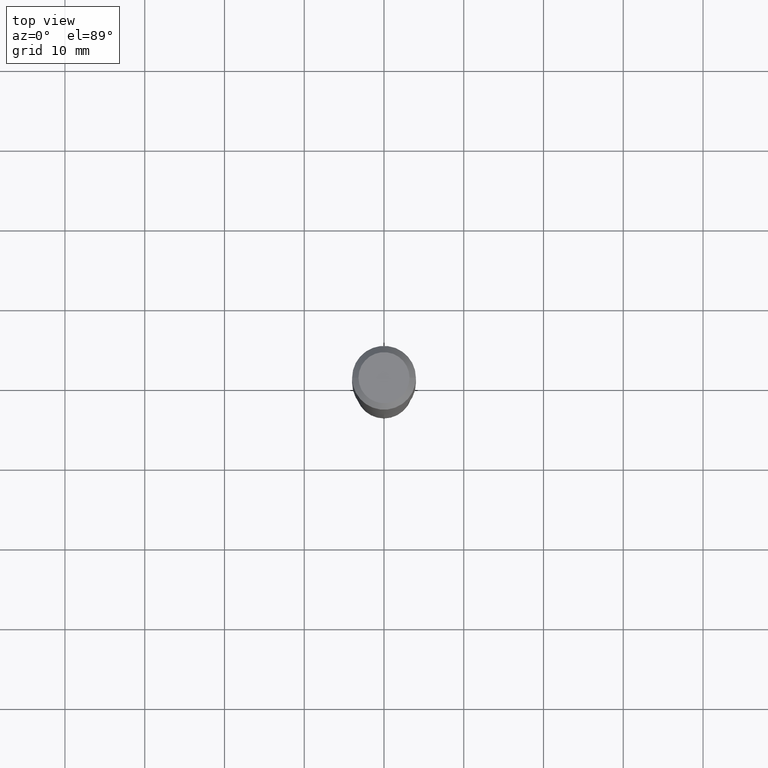
[diagram: clean part render]
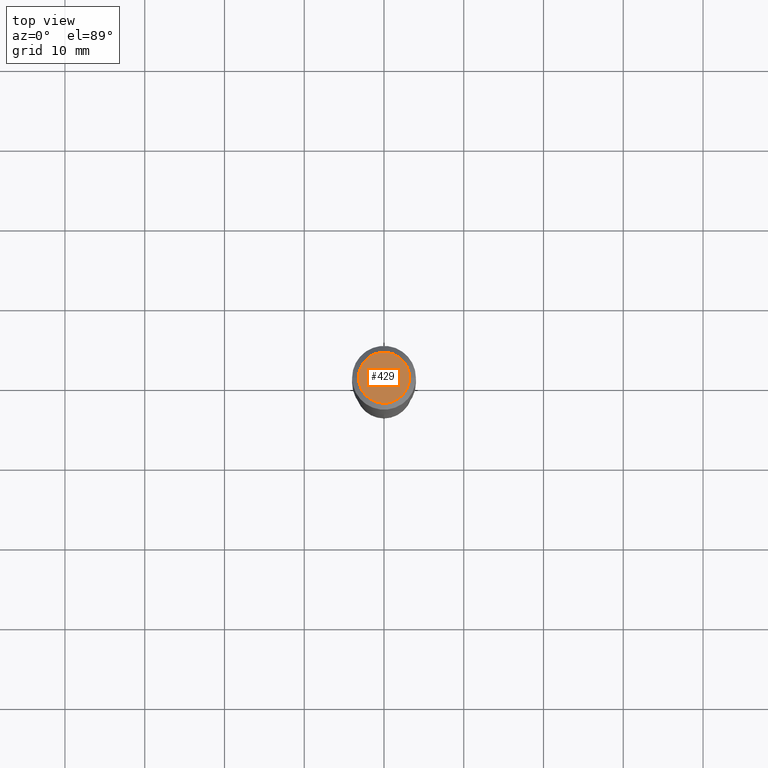
[diagram: same view with one face highlighted and labeled with its STEP entity id]
A machine part, top view. The second image highlights one B-rep face of the part: STEP entity #429.
In plain terms, the highlighted planar face has unit normal (0, -0, -1).
Its self-contained STEP definition (entity closure, byte-faithful):
#3 = PLANE ( 'NONE',  #386 ) ;
#37 = DIRECTION ( 'NONE',  ( 2.438088387897960049E-29, -3.491481338843145188E-15, -1.000000000000000000 ) ) ;
#42 = VERTEX_POINT ( 'NONE', #165 ) ;
#65 = DIRECTION ( 'NONE',  ( 1.000000000000000000, -6.982962677686265922E-15, 4.876281427513067258E-29 ) ) ;
#71 = CARTESIAN_POINT ( 'NONE',  ( -9.439721640706201686E-47, 1.347742071746726764E-32, 3.860086710912459732E-18 ) ) ;
#122 = EDGE_CURVE ( 'NONE', #179, #42, #427, .T. ) ;
#135 = DIRECTION ( 'NONE',  ( -2.445468806185136597E-29, 3.491481338843145583E-15, 1.000000000000000000 ) ) ;
#165 = CARTESIAN_POINT ( 'NONE',  ( 0.1260000000000000009, -1.027466422270894443E-15, 3.860086710919128072E-18 ) ) ;
#166 = ORIENTED_EDGE ( 'NONE', *, *, #122, .T. ) ;
#179 = VERTEX_POINT ( 'NONE', #294 ) ;
#185 = DIRECTION ( 'NONE',  ( -1.000000000000000000, 6.982962677686265922E-15, -4.876176775795935793E-29 ) ) ;
#189 = CARTESIAN_POINT ( 'NONE',  ( -4.719860820353100843E-47, 6.738710358733633822E-33, 1.930043355456229866E-18 ) ) ;
#214 = AXIS2_PLACEMENT_3D ( 'NONE', #71, #418, #441 ) ;
#294 = CARTESIAN_POINT ( 'NONE',  ( -0.1260000000000000009, 9.348441284752484904E-16, 3.860086710906114178E-18 ) ) ;
#299 = FACE_OUTER_BOUND ( 'NONE', #463, .T. ) ;
#312 = AXIS2_PLACEMENT_3D ( 'NONE', #355, #135, #65 ) ;
#348 = EDGE_CURVE ( 'NONE', #42, #179, #423, .T. ) ;
#355 = CARTESIAN_POINT ( 'NONE',  ( -9.439721640706201686E-47, 1.347742071746726764E-32, 3.860086710912459732E-18 ) ) ;
#386 = AXIS2_PLACEMENT_3D ( 'NONE', #189, #37, #185 ) ;
#406 = ORIENTED_EDGE ( 'NONE', *, *, #348, .T. ) ;
#418 = DIRECTION ( 'NONE',  ( -2.445468806185136597E-29, 3.491481338843145583E-15, 1.000000000000000000 ) ) ;
#423 = CIRCLE ( 'NONE', #312, 0.1260000000000000009 ) ;
#427 = CIRCLE ( 'NONE', #214, 0.1260000000000000009 ) ;
#429 = ADVANCED_FACE ( 'NONE', ( #299 ), #3, .F. ) ;
#441 = DIRECTION ( 'NONE',  ( 1.000000000000000000, -6.982962677686265922E-15, 4.876281427513067258E-29 ) ) ;
#463 = EDGE_LOOP ( 'NONE', ( #166, #406 ) ) ;